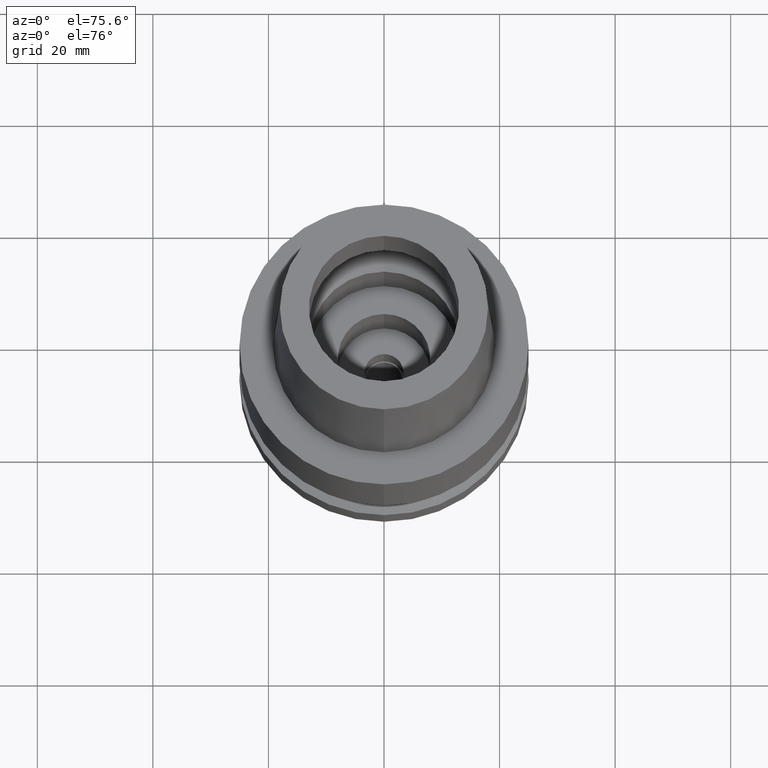
[diagram: clean part render]
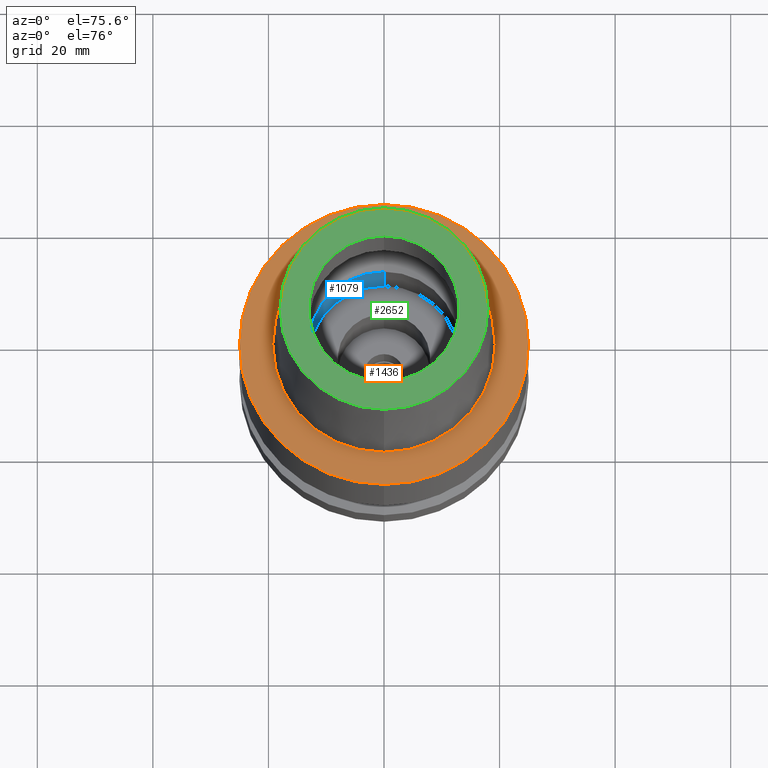
[diagram: same view with three faces highlighted in distinct colors, each labeled with its STEP entity id]
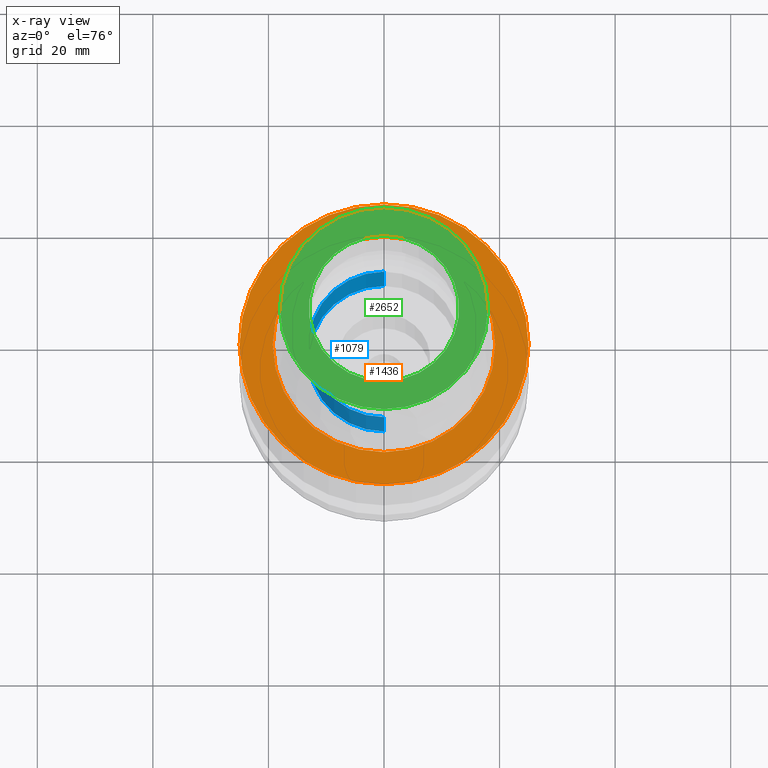
[diagram: x-ray of the same camera — body ghosted, the three highlighted faces saturated]
A machine part, auxiliary view with three faces highlighted in distinct colors.
The next image is the same camera in x-ray (body ghosted, the three faces saturated) — at least one of them is partly hidden behind the body in this view.
Their STEP definitions:

[orange] entity #1436 — the highlighted planar face has unit normal (0, 0, 1).
#8 = EDGE_LOOP ( 'NONE', ( #155, #2475 ) ) ;
#45 = DIRECTION ( 'NONE',  ( 0.0000000000000000000, 0.0000000000000000000, 1.000000000000000000 ) ) ;
#137 = DIRECTION ( 'NONE',  ( 0.0000000000000000000, -1.000000000000000000, 0.0000000000000000000 ) ) ;
#155 = ORIENTED_EDGE ( 'NONE', *, *, #2516, .F. ) ;
#167 = CARTESIAN_POINT ( 'NONE',  ( 0.0000000000000000000, 0.0000000000000000000, 1.705302565823999875E-13 ) ) ;
#214 = DIRECTION ( 'NONE',  ( 0.0000000000000000000, 0.0000000000000000000, -1.000000000000000000 ) ) ;
#266 = AXIS2_PLACEMENT_3D ( 'NONE', #941, #2442, #137 ) ;
#424 = DIRECTION ( 'NONE',  ( 0.0000000000000000000, -1.000000000000000000, 0.0000000000000000000 ) ) ;
#493 = CARTESIAN_POINT ( 'NONE',  ( 0.0000000000000000000, 19.24999954280000125, 2.664535259100000578E-13 ) ) ;
#541 = EDGE_CURVE ( 'NONE', #1182, #666, #1742, .T. ) ;
#577 = ORIENTED_EDGE ( 'NONE', *, *, #2436, .F. ) ;
#657 = AXIS2_PLACEMENT_3D ( 'NONE', #1935, #45, #1721 ) ;
#666 = VERTEX_POINT ( 'NONE', #1710 ) ;
#889 = VERTEX_POINT ( 'NONE', #939 ) ;
#939 = CARTESIAN_POINT ( 'NONE',  ( 0.0000000000000000000, -19.24999954280000125, 2.664535259100000578E-13 ) ) ;
#941 = CARTESIAN_POINT ( 'NONE',  ( 0.0000000000000000000, 0.0000000000000000000, 3.979039320256999774E-13 ) ) ;
#1052 = CARTESIAN_POINT ( 'NONE',  ( 0.0000000000000000000, 0.0000000000000000000, 3.979039320256999774E-13 ) ) ;
#1069 = AXIS2_PLACEMENT_3D ( 'NONE', #1052, #1892, #1448 ) ;
#1092 = PLANE ( 'NONE',  #657 ) ;
#1182 = VERTEX_POINT ( 'NONE', #2640 ) ;
#1210 = EDGE_CURVE ( 'NONE', #889, #1875, #1932, .T. ) ;
#1233 = DIRECTION ( 'NONE',  ( 0.0000000000000000000, 1.000000000000000000, 0.0000000000000000000 ) ) ;
#1235 = ORIENTED_EDGE ( 'NONE', *, *, #541, .F. ) ;
#1259 = DIRECTION ( 'NONE',  ( 0.0000000000000000000, 0.0000000000000000000, -1.000000000000000000 ) ) ;
#1436 = ADVANCED_FACE ( 'NONE', ( #2504, #2458 ), #1092, .T. ) ;
#1448 = DIRECTION ( 'NONE',  ( 0.0000000000000000000, 1.000000000000000000, 0.0000000000000000000 ) ) ;
#1457 = CIRCLE ( 'NONE', #1069, 19.24999954280000125 ) ;
#1706 = CIRCLE ( 'NONE', #2317, 25.00000000000000000 ) ;
#1710 = CARTESIAN_POINT ( 'NONE',  ( 0.0000000000000000000, -25.00000000000000000, 1.705302565823999875E-13 ) ) ;
#1721 = DIRECTION ( 'NONE',  ( 1.000000000000000000, 0.0000000000000000000, 0.0000000000000000000 ) ) ;
#1742 = CIRCLE ( 'NONE', #2221, 25.00000000000000000 ) ;
#1875 = VERTEX_POINT ( 'NONE', #493 ) ;
#1876 = CARTESIAN_POINT ( 'NONE',  ( 0.0000000000000000000, 0.0000000000000000000, 1.705302565823999875E-13 ) ) ;
#1892 = DIRECTION ( 'NONE',  ( 0.0000000000000000000, 0.0000000000000000000, 1.000000000000000000 ) ) ;
#1903 = EDGE_LOOP ( 'NONE', ( #1235, #577 ) ) ;
#1932 = CIRCLE ( 'NONE', #266, 19.24999954280000125 ) ;
#1935 = CARTESIAN_POINT ( 'NONE',  ( 0.0000000000000000000, 0.0000000000000000000, 0.0000000000000000000 ) ) ;
#2221 = AXIS2_PLACEMENT_3D ( 'NONE', #167, #1259, #1233 ) ;
#2317 = AXIS2_PLACEMENT_3D ( 'NONE', #1876, #214, #424 ) ;
#2436 = EDGE_CURVE ( 'NONE', #666, #1182, #1706, .T. ) ;
#2442 = DIRECTION ( 'NONE',  ( 0.0000000000000000000, 0.0000000000000000000, 1.000000000000000000 ) ) ;
#2458 = FACE_BOUND ( 'NONE', #8, .T. ) ;
#2475 = ORIENTED_EDGE ( 'NONE', *, *, #1210, .F. ) ;
#2504 = FACE_OUTER_BOUND ( 'NONE', #1903, .T. ) ;
#2516 = EDGE_CURVE ( 'NONE', #1875, #889, #1457, .T. ) ;
#2640 = CARTESIAN_POINT ( 'NONE',  ( 0.0000000000000000000, 25.00000000000000000, 1.705302565823999875E-13 ) ) ;

[blue] entity #1079 — the highlighted cylindrical surface (partial cylindrical patch) has radius 13 mm, axis along (0, 0, 1).
#78 = CARTESIAN_POINT ( 'NONE',  ( 0.0000000000000000000, 13.00000000000000000, -9.950000000000001066 ) ) ;
#107 = CARTESIAN_POINT ( 'NONE',  ( 0.0000000000000000000, 13.00000000000000000, 1.421085471519999938E-13 ) ) ;
#172 = VECTOR ( 'NONE', #913, 1000.000000000000000 ) ;
#295 = VERTEX_POINT ( 'NONE', #107 ) ;
#315 = DIRECTION ( 'NONE',  ( 0.0000000000000000000, 0.0000000000000000000, 1.000000000000000000 ) ) ;
#392 = EDGE_CURVE ( 'NONE', #807, #295, #514, .T. ) ;
#462 = EDGE_CURVE ( 'NONE', #2242, #807, #868, .T. ) ;
#514 = LINE ( 'NONE', #78, #172 ) ;
#532 = CARTESIAN_POINT ( 'NONE',  ( 0.0000000000000000000, -13.00000000000000000, -9.950000000000001066 ) ) ;
#553 = CYLINDRICAL_SURFACE ( 'NONE', #1750, 13.00000000000000000 ) ;
#598 = EDGE_LOOP ( 'NONE', ( #1403, #2074, #2037, #2116 ) ) ;
#660 = CARTESIAN_POINT ( 'NONE',  ( 0.0000000000000000000, 13.00000000000000000, -9.950000000000001066 ) ) ;
#687 = CARTESIAN_POINT ( 'NONE',  ( 0.0000000000000000000, 0.0000000000000000000, 1.563194018672000033E-13 ) ) ;
#738 = EDGE_CURVE ( 'NONE', #1915, #295, #2566, .T. ) ;
#782 = CARTESIAN_POINT ( 'NONE',  ( 0.0000000000000000000, 0.0000000000000000000, -9.950000000000001066 ) ) ;
#807 = VERTEX_POINT ( 'NONE', #660 ) ;
#868 = CIRCLE ( 'NONE', #1261, 13.00000000000000000 ) ;
#913 = DIRECTION ( 'NONE',  ( 0.0000000000000000000, 0.0000000000000000000, 1.000000000000000000 ) ) ;
#1079 = ADVANCED_FACE ( 'NONE', ( #2417 ), #553, .F. ) ;
#1261 = AXIS2_PLACEMENT_3D ( 'NONE', #782, #2460, #2043 ) ;
#1356 = DIRECTION ( 'NONE',  ( 0.0000000000000000000, 1.000000000000000000, 0.0000000000000000000 ) ) ;
#1360 = DIRECTION ( 'NONE',  ( 0.0000000000000000000, 0.0000000000000000000, 1.000000000000000000 ) ) ;
#1403 = ORIENTED_EDGE ( 'NONE', *, *, #738, .F. ) ;
#1526 = CARTESIAN_POINT ( 'NONE',  ( 0.0000000000000000000, -13.00000000000000000, 1.421085471519999938E-13 ) ) ;
#1680 = DIRECTION ( 'NONE',  ( 0.0000000000000000000, -1.000000000000000000, 0.0000000000000000000 ) ) ;
#1750 = AXIS2_PLACEMENT_3D ( 'NONE', #1782, #315, #1356 ) ;
#1782 = CARTESIAN_POINT ( 'NONE',  ( 0.0000000000000000000, 0.0000000000000000000, -81.04999999999999716 ) ) ;
#1790 = AXIS2_PLACEMENT_3D ( 'NONE', #687, #2563, #1680 ) ;
#1844 = VECTOR ( 'NONE', #1360, 1000.000000000000000 ) ;
#1852 = EDGE_CURVE ( 'NONE', #2242, #1915, #2570, .T. ) ;
#1915 = VERTEX_POINT ( 'NONE', #1526 ) ;
#2037 = ORIENTED_EDGE ( 'NONE', *, *, #462, .T. ) ;
#2043 = DIRECTION ( 'NONE',  ( 0.0000000000000000000, -1.000000000000000000, 0.0000000000000000000 ) ) ;
#2074 = ORIENTED_EDGE ( 'NONE', *, *, #1852, .F. ) ;
#2116 = ORIENTED_EDGE ( 'NONE', *, *, #392, .T. ) ;
#2242 = VERTEX_POINT ( 'NONE', #2677 ) ;
#2417 = FACE_OUTER_BOUND ( 'NONE', #598, .T. ) ;
#2460 = DIRECTION ( 'NONE',  ( 0.0000000000000000000, 0.0000000000000000000, -1.000000000000000000 ) ) ;
#2563 = DIRECTION ( 'NONE',  ( 0.0000000000000000000, 0.0000000000000000000, -1.000000000000000000 ) ) ;
#2566 = CIRCLE ( 'NONE', #1790, 13.00000000000000000 ) ;
#2570 = LINE ( 'NONE', #532, #1844 ) ;
#2677 = CARTESIAN_POINT ( 'NONE',  ( 0.0000000000000000000, -13.00000000000000000, -9.950000000000001066 ) ) ;

[green] entity #2652 — the highlighted planar face has unit normal (0, 0, 1).
#56 = AXIS2_PLACEMENT_3D ( 'NONE', #194, #2667, #436 ) ;
#194 = CARTESIAN_POINT ( 'NONE',  ( 0.0000000000000000000, 0.0000000000000000000, 25.00000000000000000 ) ) ;
#225 = EDGE_CURVE ( 'NONE', #730, #1110, #2303, .T. ) ;
#358 = DIRECTION ( 'NONE',  ( 0.0000000000000000000, 0.0000000000000000000, -1.000000000000000000 ) ) ;
#431 = DIRECTION ( 'NONE',  ( 0.0000000000000000000, -1.000000000000000000, 0.0000000000000000000 ) ) ;
#436 = DIRECTION ( 'NONE',  ( 1.000000000000000000, 0.0000000000000000000, 0.0000000000000000000 ) ) ;
#444 = CIRCLE ( 'NONE', #2143, 18.00000182882000033 ) ;
#497 = DIRECTION ( 'NONE',  ( 0.0000000000000000000, 0.0000000000000000000, -1.000000000000000000 ) ) ;
#534 = AXIS2_PLACEMENT_3D ( 'NONE', #2198, #358, #1372 ) ;
#548 = EDGE_LOOP ( 'NONE', ( #1226, #1308 ) ) ;
#572 = ORIENTED_EDGE ( 'NONE', *, *, #225, .F. ) ;
#604 = PLANE ( 'NONE',  #56 ) ;
#730 = VERTEX_POINT ( 'NONE', #851 ) ;
#851 = CARTESIAN_POINT ( 'NONE',  ( 0.0000000000000000000, -13.00000000000000000, 25.00000000000000000 ) ) ;
#878 = CARTESIAN_POINT ( 'NONE',  ( 0.0000000000000000000, 0.0000000000000000000, 25.00000000000000000 ) ) ;
#993 = ORIENTED_EDGE ( 'NONE', *, *, #1579, .F. ) ;
#1110 = VERTEX_POINT ( 'NONE', #2217 ) ;
#1119 = DIRECTION ( 'NONE',  ( 0.0000000000000000000, -1.000000000000000000, 0.0000000000000000000 ) ) ;
#1166 = VERTEX_POINT ( 'NONE', #2216 ) ;
#1226 = ORIENTED_EDGE ( 'NONE', *, *, #2067, .F. ) ;
#1308 = ORIENTED_EDGE ( 'NONE', *, *, #1491, .F. ) ;
#1316 = VERTEX_POINT ( 'NONE', #2085 ) ;
#1372 = DIRECTION ( 'NONE',  ( 0.0000000000000000000, 1.000000000000000000, 0.0000000000000000000 ) ) ;
#1401 = CIRCLE ( 'NONE', #534, 18.00000182882000033 ) ;
#1466 = CARTESIAN_POINT ( 'NONE',  ( 0.0000000000000000000, 0.0000000000000000000, 25.00000000000000000 ) ) ;
#1484 = AXIS2_PLACEMENT_3D ( 'NONE', #878, #2327, #2336 ) ;
#1491 = EDGE_CURVE ( 'NONE', #1316, #1166, #444, .T. ) ;
#1579 = EDGE_CURVE ( 'NONE', #1110, #730, #2185, .T. ) ;
#1854 = FACE_OUTER_BOUND ( 'NONE', #548, .T. ) ;
#2067 = EDGE_CURVE ( 'NONE', #1166, #1316, #1401, .T. ) ;
#2085 = CARTESIAN_POINT ( 'NONE',  ( 0.0000000000000000000, -18.00000182882000033, 25.00000000000000000 ) ) ;
#2143 = AXIS2_PLACEMENT_3D ( 'NONE', #2559, #497, #1119 ) ;
#2185 = CIRCLE ( 'NONE', #1484, 13.00000000000000000 ) ;
#2198 = CARTESIAN_POINT ( 'NONE',  ( 0.0000000000000000000, 0.0000000000000000000, 25.00000000000000000 ) ) ;
#2216 = CARTESIAN_POINT ( 'NONE',  ( 0.0000000000000000000, 18.00000182882000033, 25.00000000000000000 ) ) ;
#2217 = CARTESIAN_POINT ( 'NONE',  ( 0.0000000000000000000, 13.00000000000000000, 25.00000000000000000 ) ) ;
#2296 = DIRECTION ( 'NONE',  ( 0.0000000000000000000, 0.0000000000000000000, 1.000000000000000000 ) ) ;
#2301 = FACE_BOUND ( 'NONE', #2434, .T. ) ;
#2303 = CIRCLE ( 'NONE', #2344, 13.00000000000000000 ) ;
#2327 = DIRECTION ( 'NONE',  ( 0.0000000000000000000, 0.0000000000000000000, 1.000000000000000000 ) ) ;
#2336 = DIRECTION ( 'NONE',  ( 0.0000000000000000000, 1.000000000000000000, 0.0000000000000000000 ) ) ;
#2344 = AXIS2_PLACEMENT_3D ( 'NONE', #1466, #2296, #431 ) ;
#2434 = EDGE_LOOP ( 'NONE', ( #993, #572 ) ) ;
#2559 = CARTESIAN_POINT ( 'NONE',  ( 0.0000000000000000000, 0.0000000000000000000, 25.00000000000000000 ) ) ;
#2652 = ADVANCED_FACE ( 'NONE', ( #1854, #2301 ), #604, .T. ) ;
#2667 = DIRECTION ( 'NONE',  ( 0.0000000000000000000, 0.0000000000000000000, 1.000000000000000000 ) ) ;